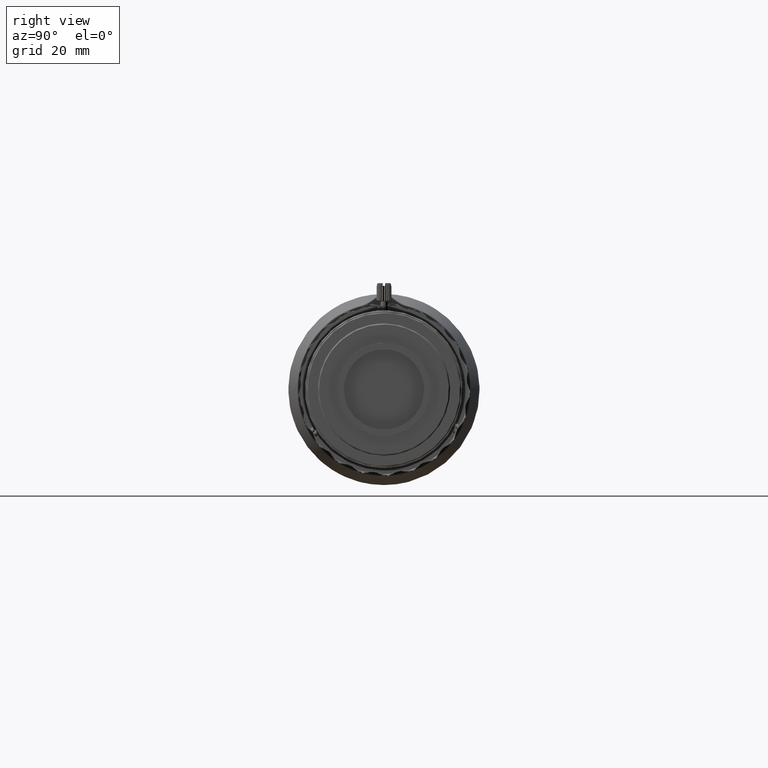
[diagram: clean part render]
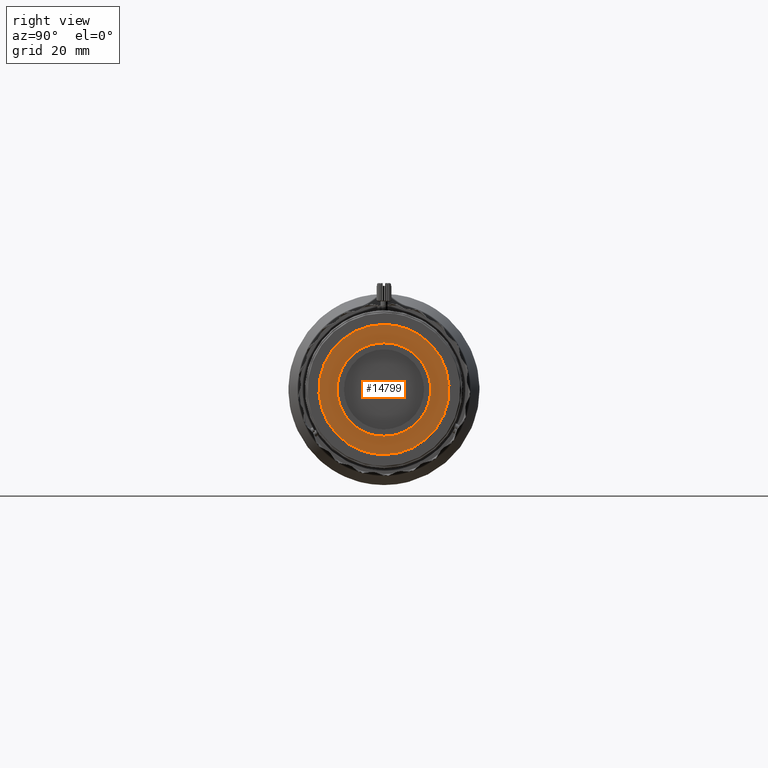
[diagram: same view with one face highlighted and labeled with its STEP entity id]
A machine part, right view. The second image highlights one B-rep face of the part: STEP entity #14799.
In plain terms, the highlighted face is a freeform B-spline surface patch.
Its self-contained STEP definition (entity closure, byte-faithful):
#91 = CARTESIAN_POINT ( 'NONE',  ( 93.93381817099999864, -12.61865939609825027, -1.659776472599626018 ) ) ;
#1338 = EDGE_LOOP ( 'NONE', ( #28463, #7046 ) ) ;
#1462 = CARTESIAN_POINT ( 'NONE',  ( 93.93381817099999864, 5.630497855154374065, -11.41415421957637299 ) ) ;
#1633 = CARTESIAN_POINT ( 'NONE',  ( 93.93381817099999864, -17.24003077139770213, 4.631217022381044046 ) ) ;
#1687 = CARTESIAN_POINT ( 'NONE',  ( 93.93381817100001285, 6.362385377814203657, 11.02295220460953473 ) ) ;
#2130 = CARTESIAN_POINT ( 'NONE',  ( 93.93381817100001285, 11.41415421957637299, -5.630497831271174647 ) ) ;
#3567 = CARTESIAN_POINT ( 'NONE',  ( 93.93381817099999864, -4.089662678867099110, -12.05238904316912318 ) ) ;
#4225 = CARTESIAN_POINT ( 'NONE',  ( 93.93381817099999864, 8.915777700705293185, 15.46530765911194116 ) ) ;
#4416 = CARTESIAN_POINT ( 'NONE',  ( 93.93381817099997022, -2.318787520638302180, 17.70000158904688448 ) ) ;
#4703 = CARTESIAN_POINT ( 'NONE',  ( 93.93381817100001285, 7.749100411582246828, 10.09637882503569628 ) ) ;
#4930 = CARTESIAN_POINT ( 'NONE',  ( 93.93381817099999864, 4.089662678867096446, 12.05238904316912318 ) ) ;
#5155 = CARTESIAN_POINT ( 'NONE',  ( 93.93381817100001285, 4.089662654983895251, -12.05238904316912674 ) ) ;
#5383 = CARTESIAN_POINT ( 'NONE',  ( 93.93381817099999864, 1.659776496482827657, 12.61865939609825382 ) ) ;
#5777 = FACE_OUTER_BOUND ( 'NONE', #1338, .T. ) ;
#5894 = EDGE_CURVE ( 'NONE', #11203, #29758, #23992, .T. ) ;
#7046 = ORIENTED_EDGE ( 'NONE', *, *, #9248, .T. ) ;
#7309 = EDGE_CURVE ( 'NONE', #29758, #11203, #41515, .T. ) ;
#7500 = CARTESIAN_POINT ( 'NONE',  ( 93.93381817099999864, -8.390605251564588585, -9.569909458309908246 ) ) ;
#8560 = CARTESIAN_POINT ( 'NONE',  ( 93.93381817099999864, -4.666666666666669577E-09, -17.70000159434894726 ) ) ;
#8808 = CARTESIAN_POINT ( 'NONE',  ( 93.93381817099999864, 17.91240161700000044, 17.91240161700000044 ) ) ;
#9078 = B_SPLINE_CURVE_WITH_KNOTS ( 'NONE', 3,
 ( #8560, #19226, #36825, #10718, #28774, #10951, #22699, #33344, #42662, #15741, #25067, #18997, #14189, #39200, #4225, #42894, #26385, #12045 ),
 .UNSPECIFIED., .F., .F.,
 ( 4, 2, 2, 2, 2, 2, 2, 2, 4 ),
 ( 0.0000000000000000000, 0.1250000000000000000, 0.2500000000000000000, 0.3750000000000000000, 0.5000000000000000000, 0.6250000000000000000, 0.7500000000000000000, 0.8750000000000000000, 1.000000000000000000 ),
 .UNSPECIFIED. ) ;
#9085 = CARTESIAN_POINT ( 'NONE',  ( 93.93381817100001285, 8.390605227681385614, -9.569909434426703498 ) ) ;
#9248 = EDGE_CURVE ( 'NONE', #15868, #10346, #43587, .T. ) ;
#10290 = CARTESIAN_POINT ( 'NONE',  ( 93.93381817099999864, -7.749100411582248604, -10.09637882503569450 ) ) ;
#10346 = VERTEX_POINT ( 'NONE', #20731 ) ;
#10718 = CARTESIAN_POINT ( 'NONE',  ( 93.93381817099995601, 8.915777700705300290, -15.46530765911193761 ) ) ;
#10951 = CARTESIAN_POINT ( 'NONE',  ( 93.93381817099999864, 14.15542151914824487, -10.87616080179588707 ) ) ;
#10979 = CARTESIAN_POINT ( 'NONE',  ( 93.93381817100001285, -11.02295218072632998, -6.362385377814204546 ) ) ;
#11203 = VERTEX_POINT ( 'NONE', #26320 ) ;
#11375 = CARTESIAN_POINT ( 'NONE',  ( 93.93381817099999864, -15.46530765911194294, -8.915777700705303843 ) ) ;
#11560 = CARTESIAN_POINT ( 'NONE',  ( 93.93381817099999864, -1.000000000000000062E-09, 17.70000159434894726 ) ) ;
#11606 = CARTESIAN_POINT ( 'NONE',  ( 93.93381817099999864, -1.000000000000000062E-09, 17.70000159434894726 ) ) ;
#11835 = CARTESIAN_POINT ( 'NONE',  ( 93.93381817099999864, -4.666666666666669577E-09, -17.70000159434894726 ) ) ;
#11889 = CARTESIAN_POINT ( 'NONE',  ( 93.93381817100001285, 12.70000172550443907, -0.8338939926442233697 ) ) ;
#12045 = CARTESIAN_POINT ( 'NONE',  ( 93.93381817099999864, -1.000000000000000062E-09, 17.70000159434894726 ) ) ;
#12117 = CARTESIAN_POINT ( 'NONE',  ( 93.93381817099995601, 3.295518383249585348, 12.29329007847349509 ) ) ;
#12786 = CARTESIAN_POINT ( 'NONE',  ( 93.93381817099999864, 3.295518407132786987, -12.29329007847349864 ) ) ;
#13994 = CARTESIAN_POINT ( 'NONE',  ( 93.93381817099999864, -8.390605227681387390, 9.569909434426705275 ) ) ;
#14189 = CARTESIAN_POINT ( 'NONE',  ( 93.93381817099999864, 14.15542151914823599, 10.87616080179587641 ) ) ;
#14222 = CARTESIAN_POINT ( 'NONE',  ( 93.93381817099999864, -6.362385377814202769, 11.02295218072632998 ) ) ;
#14799 = ADVANCED_FACE ( 'NONE', ( #23382, #5777 ), #39232, .T. ) ;
#15183 = ORIENTED_EDGE ( 'NONE', *, *, #5894, .T. ) ;
#15362 = CARTESIAN_POINT ( 'NONE',  ( 93.93381817100001285, 5.630497831271174647, 11.41415421957637299 ) ) ;
#15407 = ORIENTED_EDGE ( 'NONE', *, *, #7309, .T. ) ;
#15583 = CARTESIAN_POINT ( 'NONE',  ( 93.93381817099999864, 11.02295220460952585, -6.362385377814202769 ) ) ;
#15741 = CARTESIAN_POINT ( 'NONE',  ( 93.93381817099999864, 17.70000158904689158, 2.318787520638299959 ) ) ;
#15868 = VERTEX_POINT ( 'NONE', #11560 ) ;
#16261 = CARTESIAN_POINT ( 'NONE',  ( 93.93381817099999864, 9.569909458309908246, -8.390605251564592137 ) ) ;
#17233 = CARTESIAN_POINT ( 'NONE',  ( 93.93381817099999864, -6.362385377814202769, -11.02295220460952940 ) ) ;
#17467 = CARTESIAN_POINT ( 'NONE',  ( 93.93381817099995601, -3.295518383249583572, -12.29329007847349686 ) ) ;
#17698 = CARTESIAN_POINT ( 'NONE',  ( 93.93381817099999864, -5.630497831271172871, -11.41415421957637477 ) ) ;
#18674 = EDGE_CURVE ( 'NONE', #10346, #15868, #9078, .T. ) ;
#18840 = CARTESIAN_POINT ( 'NONE',  ( 93.93381817099999864, 12.05238904316912318, 4.089662654983895251 ) ) ;
#18997 = CARTESIAN_POINT ( 'NONE',  ( 93.93381817099999864, 15.46530765911194294, 8.915777700705296738 ) ) ;
#19015 = CARTESIAN_POINT ( 'NONE',  ( 93.93381817099999864, -14.15542151914824132, 10.87616080179587996 ) ) ;
#19226 = CARTESIAN_POINT ( 'NONE',  ( 93.93381817099997022, 2.318787520638301292, -17.70000158904688448 ) ) ;
#19243 = CARTESIAN_POINT ( 'NONE',  ( 93.93381817099999864, -4.631217022381050263, 17.24003077139769857 ) ) ;
#19298 = CARTESIAN_POINT ( 'NONE',  ( 93.93381817100001285, 12.29329007847349864, -3.295518383249585792 ) ) ;
#19742 = CARTESIAN_POINT ( 'NONE',  ( 93.93381817099999864, 12.61865939609824849, -1.659776496482827213 ) ) ;
#20721 = CARTESIAN_POINT ( 'NONE',  ( 93.93381817100001285, -12.29329007847349864, 3.295518383249584460 ) ) ;
#20731 = CARTESIAN_POINT ( 'NONE',  ( 93.93381817099999864, -4.666666666666669577E-09, -17.70000159434894726 ) ) ;
#20948 = CARTESIAN_POINT ( 'NONE',  ( 93.93381817099999864, -10.09637882503569628, 7.749100411582245052 ) ) ;
#21647 = CARTESIAN_POINT ( 'NONE',  ( 93.93381817100001285, -12.70000172550443729, 0.8338939926442217043 ) ) ;
#22699 = CARTESIAN_POINT ( 'NONE',  ( 93.93381817099999864, 15.46530765911194116, -8.915777700705294961 ) ) ;
#22776 = CARTESIAN_POINT ( 'NONE',  ( 93.93381817099999864, 7.749100411582246828, -10.09637884891889570 ) ) ;
#22939 = CARTESIAN_POINT ( 'NONE',  ( 93.93381817099999864, -10.87616080179587819, 14.15542151914823776 ) ) ;
#22942 = CARTESIAN_POINT ( 'NONE',  ( 93.93381817099999864, -17.91240161700000044, 17.91240161700000044 ) ) ;
#22994 = CARTESIAN_POINT ( 'NONE',  ( 93.93381817099999864, 9.569909434426703498, 8.390605227681387390 ) ) ;
#23382 = FACE_BOUND ( 'NONE', #23948, .T. ) ;
#23433 = CARTESIAN_POINT ( 'NONE',  ( 93.93381817099997022, 0.8338939926442232586, 12.70000172550443551 ) ) ;
#23651 = CARTESIAN_POINT ( 'NONE',  ( 93.93381817100004127, -1.659776472599624464, 12.61865939609825027 ) ) ;
#23948 = EDGE_LOOP ( 'NONE', ( #15183, #15407 ) ) ;
#23992 = B_SPLINE_CURVE_WITH_KNOTS ( 'NONE', 3,
 ( #37113, #23433, #5383, #12117, #4930, #15362, #1687, #4703, #37338, #22994, #30397, #26010, #29719, #18840, #26461, #44047, #40788, #11889, #19742, #19298, #33862, #2130, #15583, #26232, #16261, #9085, #22776, #33191, #1462, #5155, #12786, #40134, #26902, #40573 ),
 .UNSPECIFIED., .F., .F.,
 ( 4, 2, 2, 2, 2, 2, 2, 2, 2, 2, 2, 2, 2, 2, 2, 2, 4 ),
 ( 0.0000000000000000000, 0.06250000000000000000, 0.1250000000000000000, 0.1875000000000000000, 0.2500000000000000000, 0.3125000000000000000, 0.3750000000000000000, 0.4375000000000000000, 0.5000000000000000000, 0.5625000000000000000, 0.6250000000000000000, 0.6875000000000000000, 0.7500000000000000000, 0.8125000000000000000, 0.8750000000000000000, 0.9375000000000000000, 1.000000000000000000 ),
 .UNSPECIFIED. ) ;
#24413 = CARTESIAN_POINT ( 'NONE',  ( 93.93381817099999864, -12.70000172550443729, -0.8338939926442220374 ) ) ;
#24640 = CARTESIAN_POINT ( 'NONE',  ( 93.93381817100001285, -7.749100411582247716, 10.09637884891889925 ) ) ;
#25067 = CARTESIAN_POINT ( 'NONE',  ( 93.93381817099999864, 17.24003077139770213, 4.631217022381047599 ) ) ;
#25097 = CARTESIAN_POINT ( 'NONE',  ( 93.93381817099999864, -12.05238904316912674, -4.089662654983895251 ) ) ;
#25499 = CARTESIAN_POINT ( 'NONE',  ( 93.93381817099999864, -8.915777700705300290, -15.46530765911194116 ) ) ;
#25725 = CARTESIAN_POINT ( 'NONE',  ( 93.93381817100002706, -2.318787520638301736, -17.70000158904689158 ) ) ;
#26010 = CARTESIAN_POINT ( 'NONE',  ( 93.93381817099999864, 11.02295218072632998, 6.362385377814204546 ) ) ;
#26176 = CARTESIAN_POINT ( 'NONE',  ( 93.93381817099999864, -14.15542151914824487, -10.87616080179587641 ) ) ;
#26232 = CARTESIAN_POINT ( 'NONE',  ( 93.93381817100001285, 10.09637882503569450, -7.749100411582245052 ) ) ;
#26320 = CARTESIAN_POINT ( 'NONE',  ( 93.93381817099999864, -6.666666666666669494E-10, 12.70000171450148052 ) ) ;
#26385 = CARTESIAN_POINT ( 'NONE',  ( 93.93381817100002706, 2.318787520638301292, 17.70000158904688803 ) ) ;
#26461 = CARTESIAN_POINT ( 'NONE',  ( 93.93381817099999864, 12.29329007847349864, 3.295518407132788319 ) ) ;
#26902 = CARTESIAN_POINT ( 'NONE',  ( 93.93381817100002706, 0.8338939926442233697, -12.70000172550444262 ) ) ;
#27883 = CARTESIAN_POINT ( 'NONE',  ( 93.93381817099999864, -12.05238904316912496, 4.089662678867099999 ) ) ;
#28116 = CARTESIAN_POINT ( 'NONE',  ( 93.93381817099999864, -11.41415421957637299, 5.630497831271171094 ) ) ;
#28344 = CARTESIAN_POINT ( 'NONE',  ( 93.93381817099999864, -5.630497855154375841, 11.41415421957637122 ) ) ;
#28463 = ORIENTED_EDGE ( 'NONE', *, *, #18674, .T. ) ;
#28572 = CARTESIAN_POINT ( 'NONE',  ( 93.93381817099999864, -1.659776496482828989, -12.61865939609824849 ) ) ;
#28774 = CARTESIAN_POINT ( 'NONE',  ( 93.93381817099999864, 10.87616080179587819, -14.15542151914823421 ) ) ;
#29664 = CARTESIAN_POINT ( 'NONE',  ( 93.93381817099999864, -17.70000158904688803, -2.318787520638300403 ) ) ;
#29719 = CARTESIAN_POINT ( 'NONE',  ( 93.93381817099999864, 11.41415421957637299, 5.630497855154375841 ) ) ;
#29758 = VERTEX_POINT ( 'NONE', #34989 ) ;
#29891 = CARTESIAN_POINT ( 'NONE',  ( 93.93381817099999864, -17.24003077139770213, -4.631217022381036053 ) ) ;
#29894 = CARTESIAN_POINT ( 'NONE',  ( 93.93381817099999864, 17.91240161700000044, -17.91240161700000044 ) ) ;
#30397 = CARTESIAN_POINT ( 'NONE',  ( 93.93381817099999864, 10.09637884891889570, 7.749100411582247716 ) ) ;
#31365 = CARTESIAN_POINT ( 'NONE',  ( 93.93381817100001285, -10.09637884891889925, -7.749100411582247716 ) ) ;
#31598 = CARTESIAN_POINT ( 'NONE',  ( 93.93381817099999864, -9.569909458309908246, 8.390605251564590361 ) ) ;
#31828 = CARTESIAN_POINT ( 'NONE',  ( 93.93381817099999864, -12.29329007847349864, -3.295518407132786987 ) ) ;
#33191 = CARTESIAN_POINT ( 'NONE',  ( 93.93381817100001285, 6.362385377814205434, -11.02295218072632643 ) ) ;
#33344 = CARTESIAN_POINT ( 'NONE',  ( 93.93381817099999864, 17.24003077139769857, -4.631217022381046711 ) ) ;
#33862 = CARTESIAN_POINT ( 'NONE',  ( 93.93381817099999864, 12.05238904316912496, -4.089662678867097334 ) ) ;
#34311 = CARTESIAN_POINT ( 'NONE',  ( 93.93381817100002706, -0.8338939926442222594, 12.70000172550443729 ) ) ;
#34540 = CARTESIAN_POINT ( 'NONE',  ( 93.93381817099999864, -3.295518407132788319, 12.29329007847349864 ) ) ;
#34989 = CARTESIAN_POINT ( 'NONE',  ( 93.93381817099999864, -3.333333333333335057E-09, -12.70000171450148052 ) ) ;
#35528 = CARTESIAN_POINT ( 'NONE',  ( 93.93381817099999864, -3.333333333333335057E-09, -12.70000171450148052 ) ) ;
#35767 = CARTESIAN_POINT ( 'NONE',  ( 93.93381817099999864, -12.61865939609825205, 1.659776496482828323 ) ) ;
#36619 = CARTESIAN_POINT ( 'NONE',  ( 93.93381817099999864, -10.87616080179588174, -14.15542151914824487 ) ) ;
#36825 = CARTESIAN_POINT ( 'NONE',  ( 93.93381817099999864, 4.631217022381036941, -17.24003077139770213 ) ) ;
#37061 = CARTESIAN_POINT ( 'NONE',  ( 93.93381817099999864, -17.70000158904688803, 2.318787520638301292 ) ) ;
#37113 = CARTESIAN_POINT ( 'NONE',  ( 93.93381817099999864, -6.666666666666669494E-10, 12.70000171450148052 ) ) ;
#37290 = CARTESIAN_POINT ( 'NONE',  ( 93.93381817099999864, -17.91240161700000044, -17.91240161700000044 ) ) ;
#37338 = CARTESIAN_POINT ( 'NONE',  ( 93.93381817099999864, 8.390605251564590361, 9.569909458309908246 ) ) ;
#38550 = CARTESIAN_POINT ( 'NONE',  ( 93.93381817100001285, -11.02295220460953296, 6.362385377814203657 ) ) ;
#39004 = CARTESIAN_POINT ( 'NONE',  ( 93.93381817099997022, -0.8338939926442220374, -12.70000172550444084 ) ) ;
#39200 = CARTESIAN_POINT ( 'NONE',  ( 93.93381817099999864, 10.87616080179588707, 14.15542151914824132 ) ) ;
#39232 = B_SPLINE_SURFACE_WITH_KNOTS ( 'NONE', 1, 1, ( 
 ( #22942, #8808 ),
 ( #37290, #29894 ) ),
 .UNSPECIFIED., .F., .F., .F.,
 ( 2, 2 ),
 ( 2, 2 ),
 ( 0.0000000000000000000, 1.000000000000000000 ),
 ( 0.0000000000000000000, 1.000000000000000000 ),
 .UNSPECIFIED. ) ;
#40134 = CARTESIAN_POINT ( 'NONE',  ( 93.93381817100004127, 1.659776472599625352, -12.61865939609825027 ) ) ;
#40573 = CARTESIAN_POINT ( 'NONE',  ( 93.93381817099999864, -3.333333333333335057E-09, -12.70000171450148052 ) ) ;
#40788 = CARTESIAN_POINT ( 'NONE',  ( 93.93381817099999864, 12.70000172550444084, 0.8338939926442233697 ) ) ;
#41515 = B_SPLINE_CURVE_WITH_KNOTS ( 'NONE', 3,
 ( #35528, #39004, #28572, #17467, #3567, #17698, #17233, #10290, #7500, #42691, #31365, #10979, #42229, #25097, #31828, #91, #24413, #21647, #35767, #20721, #27883, #28116, #38550, #20948, #31598, #13994, #24640, #14222, #28344, #45158, #34540, #23651, #34311, #45386 ),
 .UNSPECIFIED., .F., .F.,
 ( 4, 2, 2, 2, 2, 2, 2, 2, 2, 2, 2, 2, 2, 2, 2, 2, 4 ),
 ( 0.0000000000000000000, 0.06250000000000000000, 0.1250000000000000000, 0.1875000000000000000, 0.2500000000000000000, 0.3125000000000000000, 0.3750000000000000000, 0.4375000000000000000, 0.5000000000000000000, 0.5625000000000000000, 0.6250000000000000000, 0.6875000000000000000, 0.7500000000000000000, 0.8125000000000000000, 0.8750000000000000000, 0.9375000000000000000, 1.000000000000000000 ),
 .UNSPECIFIED. ) ;
#42229 = CARTESIAN_POINT ( 'NONE',  ( 93.93381817099999864, -11.41415421957637122, -5.630497855154374953 ) ) ;
#42662 = CARTESIAN_POINT ( 'NONE',  ( 93.93381817099999864, 17.70000158904688803, -2.318787520638301292 ) ) ;
#42691 = CARTESIAN_POINT ( 'NONE',  ( 93.93381817100001285, -9.569909434426708827, -8.390605227681387390 ) ) ;
#42894 = CARTESIAN_POINT ( 'NONE',  ( 93.93381817100001285, 4.631217022381046711, 17.24003077139770213 ) ) ;
#43094 = CARTESIAN_POINT ( 'NONE',  ( 93.93381817099999864, -15.46530765911193939, 8.915777700705303843 ) ) ;
#43547 = CARTESIAN_POINT ( 'NONE',  ( 93.93381817100001285, -4.631217022381044046, -17.24003077139769857 ) ) ;
#43587 = B_SPLINE_CURVE_WITH_KNOTS ( 'NONE', 3,
 ( #11606, #4416, #19243, #43774, #22939, #19015, #43094, #1633, #37061, #29664, #29891, #11375, #26176, #36619, #25499, #43547, #25725, #11835 ),
 .UNSPECIFIED., .F., .F.,
 ( 4, 2, 2, 2, 2, 2, 2, 2, 4 ),
 ( 0.0000000000000000000, 0.1250000000000000000, 0.2500000000000000000, 0.3750000000000000000, 0.5000000000000000000, 0.6250000000000000000, 0.7500000000000000000, 0.8750000000000000000, 1.000000000000000000 ),
 .UNSPECIFIED. ) ;
#43774 = CARTESIAN_POINT ( 'NONE',  ( 93.93381817099995601, -8.915777700705293185, 15.46530765911193761 ) ) ;
#44047 = CARTESIAN_POINT ( 'NONE',  ( 93.93381817099999864, 12.61865939609825560, 1.659776472599624020 ) ) ;
#45158 = CARTESIAN_POINT ( 'NONE',  ( 93.93381817100001285, -4.089662654983895251, 12.05238904316912674 ) ) ;
#45386 = CARTESIAN_POINT ( 'NONE',  ( 93.93381817099999864, -6.666666666666669494E-10, 12.70000171450148052 ) ) ;